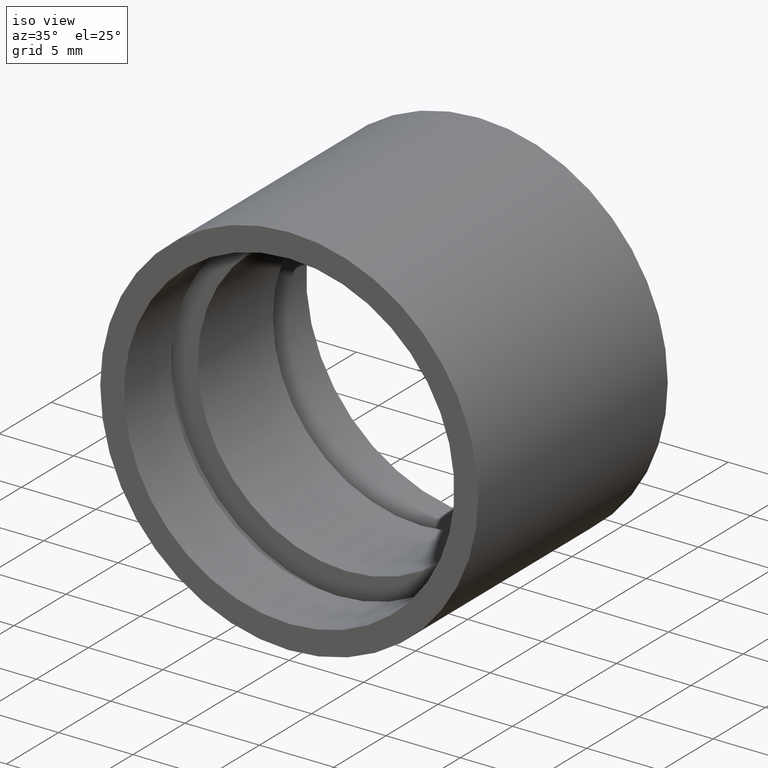
[diagram: clean part render]
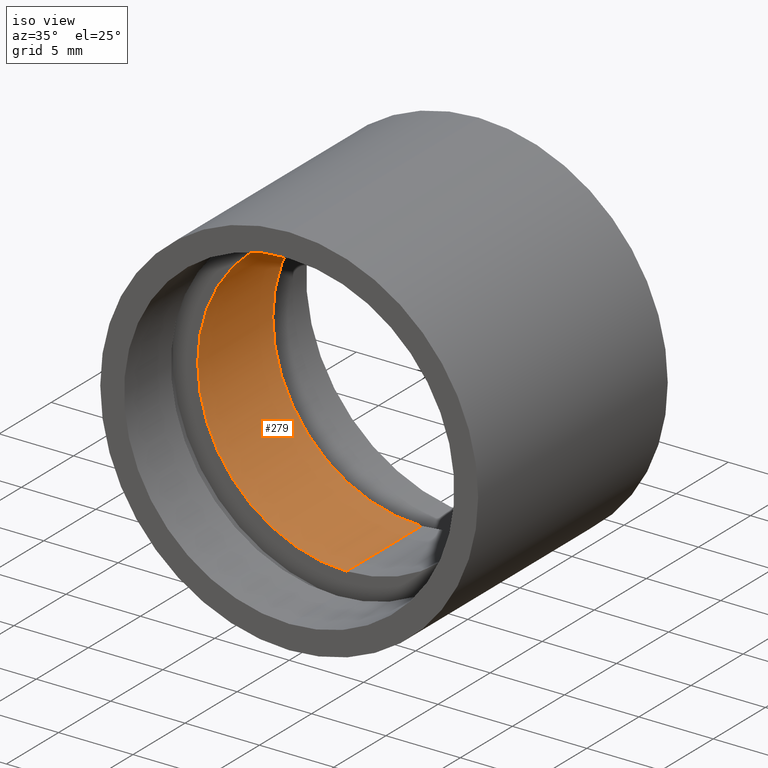
[diagram: same view with one face highlighted and labeled with its STEP entity id]
A machine part, iso view. The second image highlights one B-rep face of the part: STEP entity #279.
In plain terms, the highlighted cylindrical surface (partial cylindrical patch) has radius 10 mm, axis along (-0, 1, -0).
Its self-contained STEP definition (entity closure, byte-faithful):
#9 = VERTEX_POINT ( 'NONE', #507 ) ;
#17 = AXIS2_PLACEMENT_3D ( 'NONE', #325, #565, #183 ) ;
#43 = CIRCLE ( 'NONE', #248, 10.00000000000002000 ) ;
#48 = CARTESIAN_POINT ( 'NONE',  ( 0.0000000000000000000, 161.3761669434274500, 0.0000000000000000000 ) ) ;
#50 = VERTEX_POINT ( 'NONE', #125 ) ;
#55 = EDGE_LOOP ( 'NONE', ( #453, #357, #123, #153 ) ) ;
#110 = DIRECTION ( 'NONE',  ( 0.0000000000000000000, 0.0000000000000000000, 1.000000000000000000 ) ) ;
#123 = ORIENTED_EDGE ( 'NONE', *, *, #524, .T. ) ;
#125 = CARTESIAN_POINT ( 'NONE',  ( 1.224646799147355400E-015, 12.69999999999996200, -10.00000000000002000 ) ) ;
#153 = ORIENTED_EDGE ( 'NONE', *, *, #276, .F. ) ;
#154 = CARTESIAN_POINT ( 'NONE',  ( 0.0000000000000000000, 161.3761669434274500, 10.00000000000002000 ) ) ;
#183 = DIRECTION ( 'NONE',  ( 0.0000000000000000000, 0.0000000000000000000, 1.000000000000000000 ) ) ;
#186 = VERTEX_POINT ( 'NONE', #480 ) ;
#201 = DIRECTION ( 'NONE',  ( -0.0000000000000000000, 1.000000000000000000, -0.0000000000000000000 ) ) ;
#230 = VECTOR ( 'NONE', #260, 1000.000000000000000 ) ;
#248 = AXIS2_PLACEMENT_3D ( 'NONE', #489, #251, #110 ) ;
#251 = DIRECTION ( 'NONE',  ( -0.0000000000000000000, 1.000000000000000000, -0.0000000000000000000 ) ) ;
#260 = DIRECTION ( 'NONE',  ( -0.0000000000000000000, 1.000000000000000000, -0.0000000000000000000 ) ) ;
#276 = EDGE_CURVE ( 'NONE', #9, #186, #446, .T. ) ;
#279 = ADVANCED_FACE ( 'NONE', ( #386 ), #518, .F. ) ;
#284 = LINE ( 'NONE', #548, #230 ) ;
#292 = DIRECTION ( 'NONE',  ( 0.0000000000000000000, 0.0000000000000000000, 1.000000000000000000 ) ) ;
#325 = CARTESIAN_POINT ( 'NONE',  ( 0.0000000000000000000, 12.69999999999996200, 0.0000000000000000000 ) ) ;
#346 = EDGE_CURVE ( 'NONE', #471, #9, #43, .T. ) ;
#357 = ORIENTED_EDGE ( 'NONE', *, *, #472, .T. ) ;
#386 = FACE_OUTER_BOUND ( 'NONE', #55, .T. ) ;
#446 = LINE ( 'NONE', #154, #491 ) ;
#453 = ORIENTED_EDGE ( 'NONE', *, *, #346, .F. ) ;
#465 = CIRCLE ( 'NONE', #17, 10.00000000000002000 ) ;
#471 = VERTEX_POINT ( 'NONE', #595 ) ;
#472 = EDGE_CURVE ( 'NONE', #471, #50, #284, .T. ) ;
#480 = CARTESIAN_POINT ( 'NONE',  ( 0.0000000000000000000, 12.69999999999996200, 10.00000000000002000 ) ) ;
#489 = CARTESIAN_POINT ( 'NONE',  ( 0.0000000000000000000, 5.499999999999976900, 0.0000000000000000000 ) ) ;
#491 = VECTOR ( 'NONE', #582, 1000.000000000000000 ) ;
#507 = CARTESIAN_POINT ( 'NONE',  ( 0.0000000000000000000, 5.499999999999976900, 10.00000000000002000 ) ) ;
#518 = CYLINDRICAL_SURFACE ( 'NONE', #533, 10.00000000000002000 ) ;
#524 = EDGE_CURVE ( 'NONE', #50, #186, #465, .T. ) ;
#533 = AXIS2_PLACEMENT_3D ( 'NONE', #48, #201, #292 ) ;
#548 = CARTESIAN_POINT ( 'NONE',  ( 1.224646799147355400E-015, 161.3761669434274500, -10.00000000000002000 ) ) ;
#565 = DIRECTION ( 'NONE',  ( -0.0000000000000000000, 1.000000000000000000, -0.0000000000000000000 ) ) ;
#582 = DIRECTION ( 'NONE',  ( -0.0000000000000000000, 1.000000000000000000, -0.0000000000000000000 ) ) ;
#595 = CARTESIAN_POINT ( 'NONE',  ( 1.224646799147355400E-015, 5.499999999999976900, -10.00000000000002000 ) ) ;